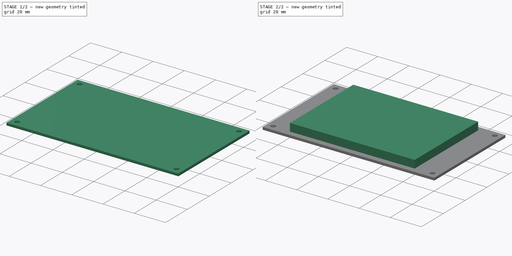
[diagram: build sequence overview — one tinted view per stage of 2, left to right]
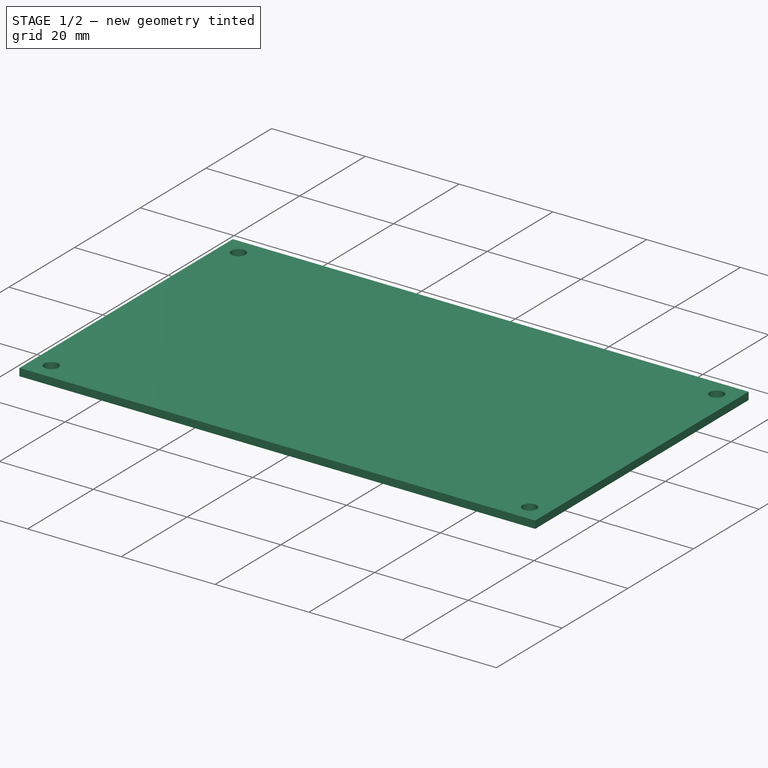
[diagram: stage 1 of 2 — iso view after this stage's code; geometry added in this stage tinted green]
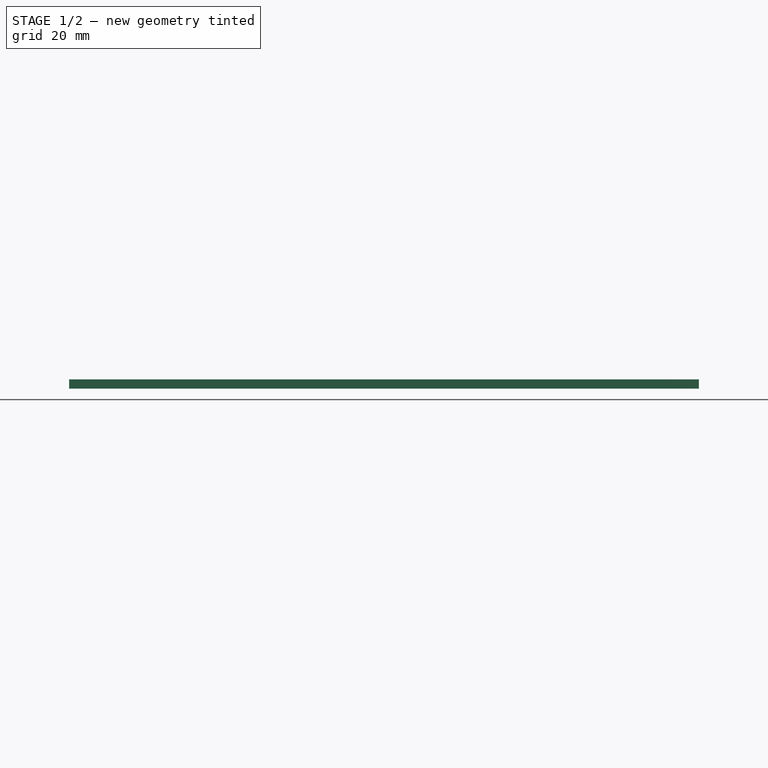
[diagram: stage 1 of 2 — front view after this stage's code; geometry added in this stage tinted green]
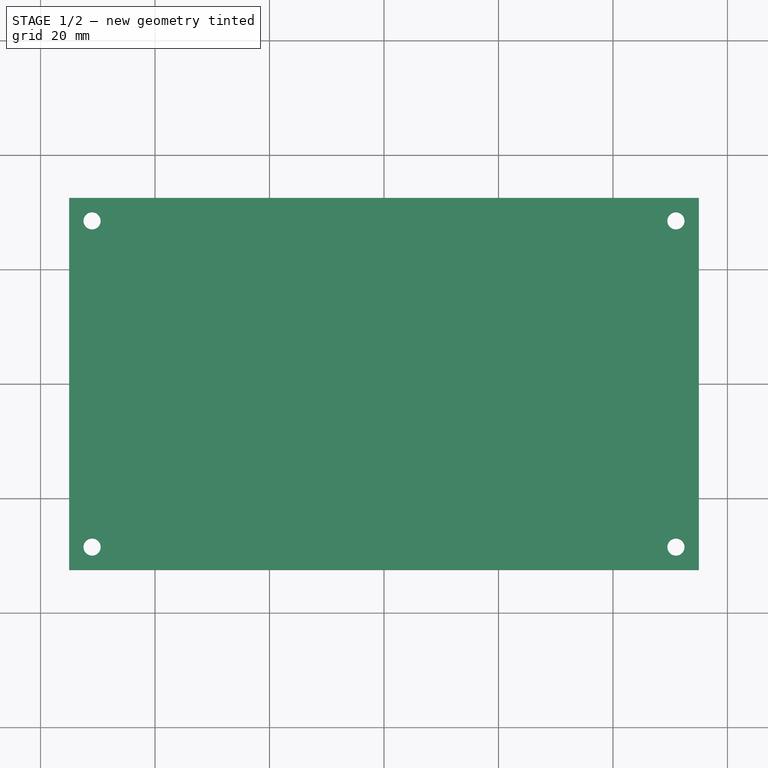
[diagram: stage 1 of 2 — top view after this stage's code; geometry added in this stage tinted green]
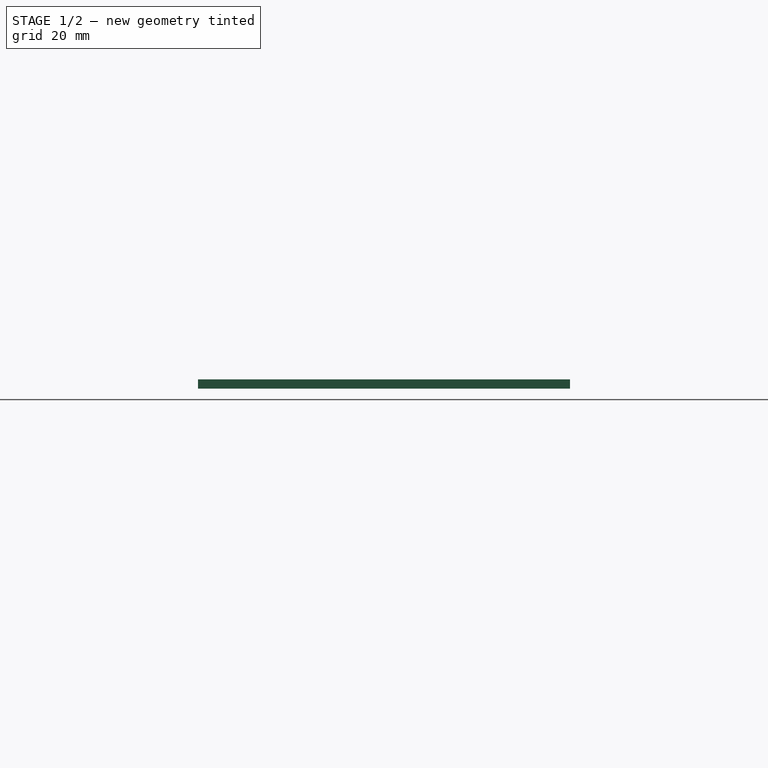
[diagram: stage 1 of 2 — right view after this stage's code; geometry added in this stage tinted green]
FCSTD DOCUMENT  (FreeCAD 0.16R6706 (Git))
Label: MKS TFT32
License: All rights reserved
LicenseURL: http://en.wikipedia.org/wiki/All_rights_reserved
objects: Sketcher::SketchObject×2, PartDesign::Pad×2
note: 6 computed .brp shape members not serialized (recipe doc carries the construction recipe); baked Part::Feature solids carry a one-line shape summary decoded from their .brp

FEATURE [Sketcher::SketchObject] Sketch
  sketch-geometry (12):
    g0: LineSegment StartX=-55 StartY=32.5 StartZ=0 EndX=55 EndY=32.5 EndZ=0
    g1: LineSegment StartX=55 StartY=32.5 StartZ=0 EndX=55 EndY=-32.5 EndZ=0
    g2: LineSegment StartX=55 StartY=-32.5 StartZ=0 EndX=-55 EndY=-32.5 EndZ=0
    g3: LineSegment StartX=-55 StartY=-32.5 StartZ=0 EndX=-55 EndY=32.5 EndZ=0
    g4: LineSegment [constr] StartX=-51 StartY=28.5 StartZ=0 EndX=51 EndY=28.5 EndZ=0
    g5: LineSegment [constr] StartX=51 StartY=28.5 StartZ=0 EndX=51 EndY=-28.5 EndZ=0
    g6: LineSegment [constr] StartX=51 StartY=-28.5 StartZ=0 EndX=-51 EndY=-28.5 EndZ=0
    g7: LineSegment [constr] StartX=-51 StartY=-28.5 StartZ=0 EndX=-51 EndY=28.5 EndZ=0
    g8: Circle CenterX=-51 CenterY=28.5 CenterZ=0 NormalX=0 NormalY=0 NormalZ=1 Radius=1.5
    g9: Circle CenterX=51 CenterY=28.5 CenterZ=0 NormalX=0 NormalY=0 NormalZ=1 Radius=1.5
    g10: Circle CenterX=51 CenterY=-28.5 CenterZ=0 NormalX=0 NormalY=0 NormalZ=1 Radius=1.5
    g11: Circle CenterX=-51 CenterY=-28.5 CenterZ=0 NormalX=0 NormalY=0 NormalZ=1 Radius=1.5
  constraints (30):
    c: Coincident(g0,g1)
    c: Coincident(g1,g2)
    c: Coincident(g2,g3)
    c: Coincident(g3,g0)
    c: Horizontal(g0)
    c: Horizontal(g2)
    c: Vertical(g1)
    c: Vertical(g3)
    c: Symmetric(g2,g0,g-1)
    c: DistanceX(g0,g0) = 110
    c: DistanceY(g1,g1) = 65
    c: Coincident(g4,g5)
    c: Coincident(g5,g6)
    c: Coincident(g6,g7)
    c: Coincident(g7,g4)
    c: Horizontal(g4)
    c: Horizontal(g6)
    c: Vertical(g5)
    c: Vertical(g7)
    c: Symmetric(g4,g6,g-1)
    c: DistanceX(g4,g4) = 102
    c: DistanceY(g7,g7) = 57
    c: Radius(g8) = 1.5
    c: Equal(g8,g9) = 1.5
    c: Equal(g8,g10) = 1.5
    c: Equal(g8,g11) = 1.5
    c: Coincident(g8,g4)
    c: Coincident(g4,g9)
    c: Coincident(g5,g10)
    c: Coincident(g6,g11)
FEATURE [PartDesign::Pad] Pad
  Length = 1.6
  Length2 = 100
  Sketch = -> Sketch
  Type = 0
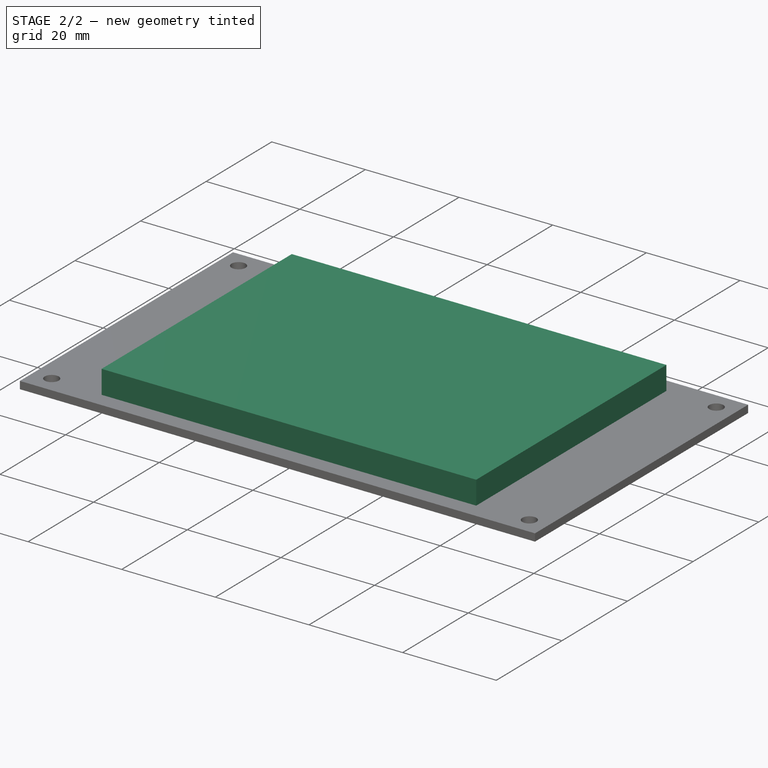
[diagram: stage 2 of 2 — iso view after this stage's code; geometry added in this stage tinted green]
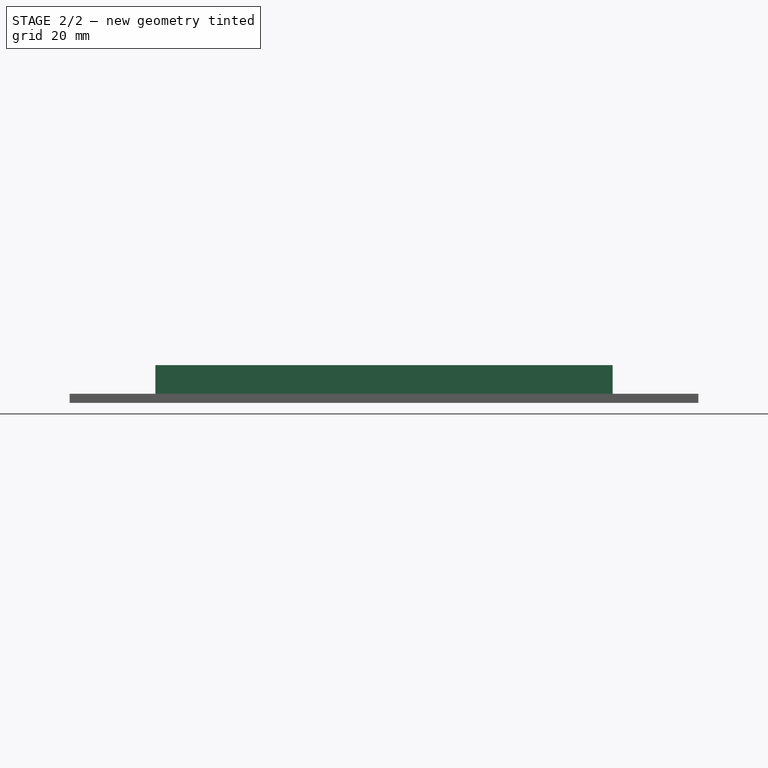
[diagram: stage 2 of 2 — front view after this stage's code; geometry added in this stage tinted green]
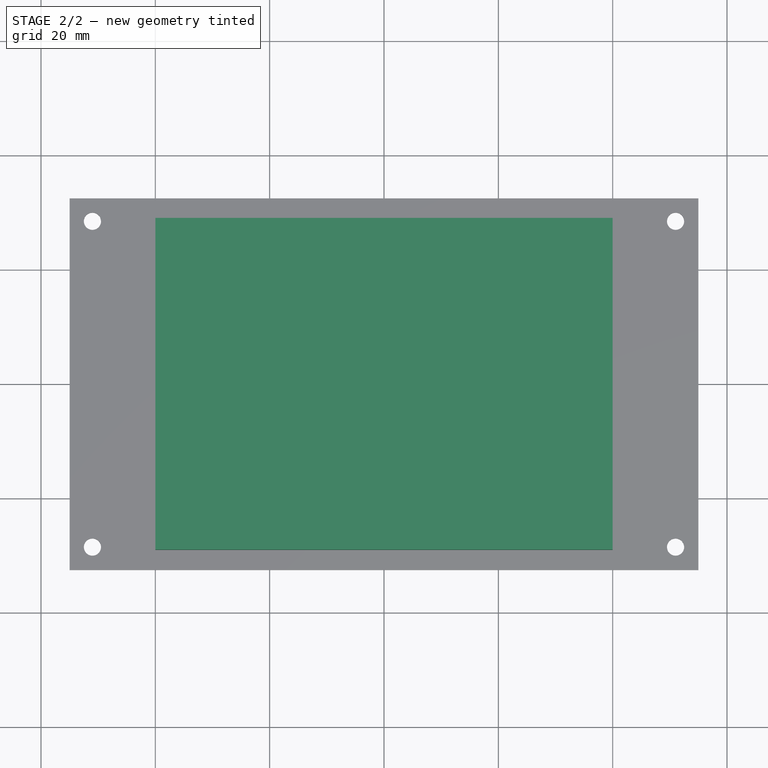
[diagram: stage 2 of 2 — top view after this stage's code; geometry added in this stage tinted green]
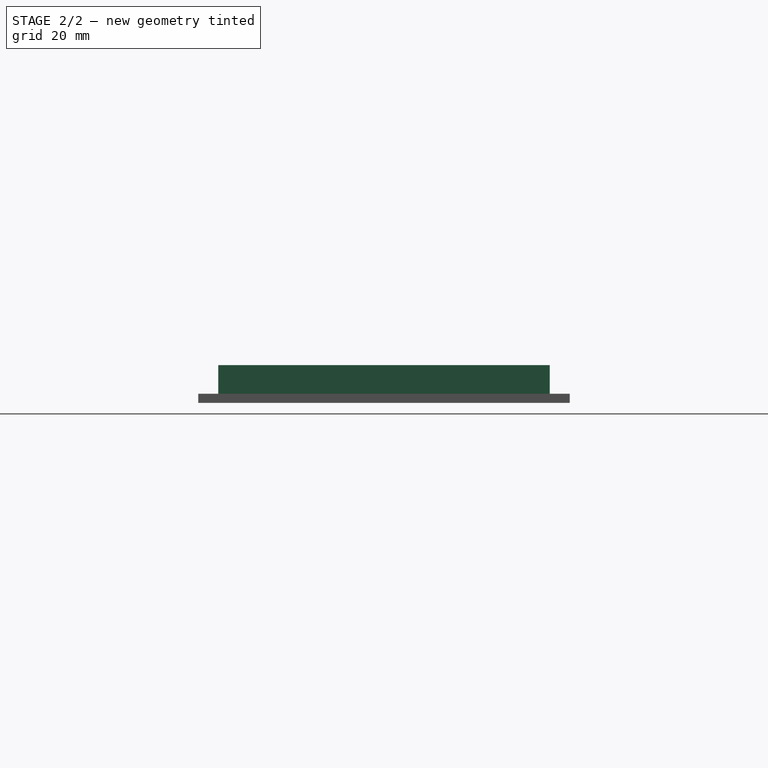
[diagram: stage 2 of 2 — right view after this stage's code; geometry added in this stage tinted green]
FEATURE [Sketcher::SketchObject] Sketch001
  Placement = pos=(0,0,1.6) rot=(0,0,1;0rad)
  Support = -> Pad [Face10]
  sketch-geometry (4):
    g0: LineSegment StartX=-40 StartY=29 StartZ=0 EndX=40 EndY=29 EndZ=0
    g1: LineSegment StartX=40 StartY=29 StartZ=0 EndX=40 EndY=-29 EndZ=0
    g2: LineSegment StartX=40 StartY=-29 StartZ=0 EndX=-40 EndY=-29 EndZ=0
    g3: LineSegment StartX=-40 StartY=-29 StartZ=0 EndX=-40 EndY=29 EndZ=0
  constraints (11):
    c: Coincident(g0,g1)
    c: Coincident(g1,g2)
    c: Coincident(g2,g3)
    c: Coincident(g3,g0)
    c: Horizontal(g0)
    c: Horizontal(g2)
    c: Vertical(g1)
    c: Vertical(g3)
    c: Symmetric(g0,g2,g-1)
    c: DistanceY(g3,g3) = 58
    c: DistanceX(g0,g0) = 80
FEATURE [PartDesign::Pad] Pad001
  Length = 5
  Length2 = 100
  Sketch = -> Sketch001
  Type = 0
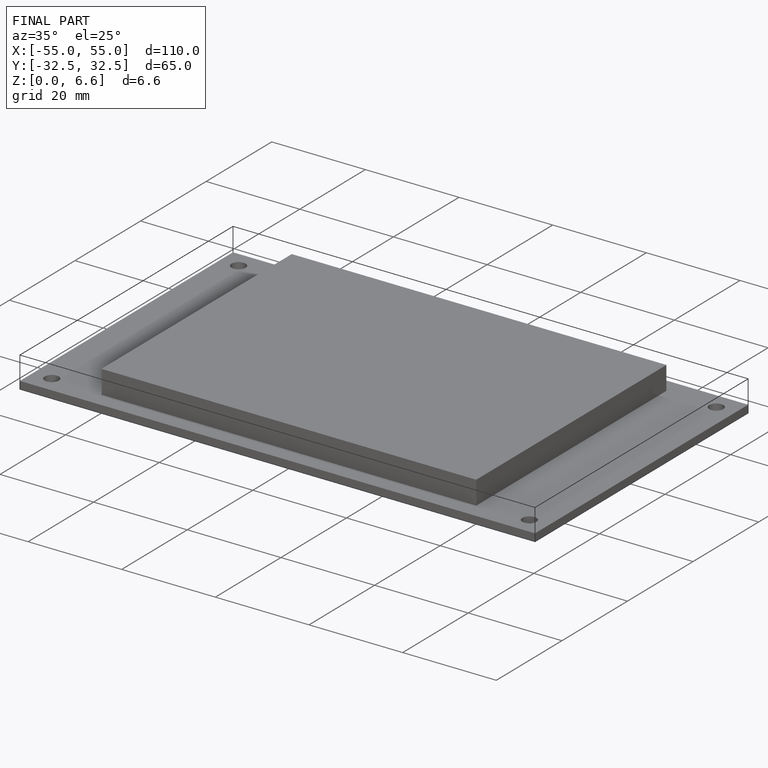
[diagram: finished part — iso view with bounding-box wireframe]
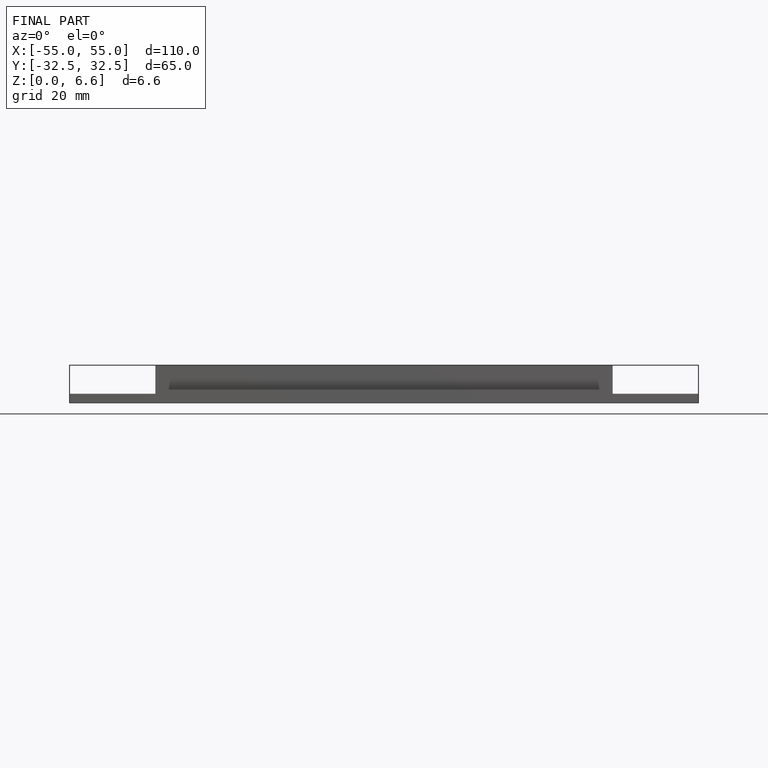
[diagram: finished part — front view with bounding-box wireframe]
